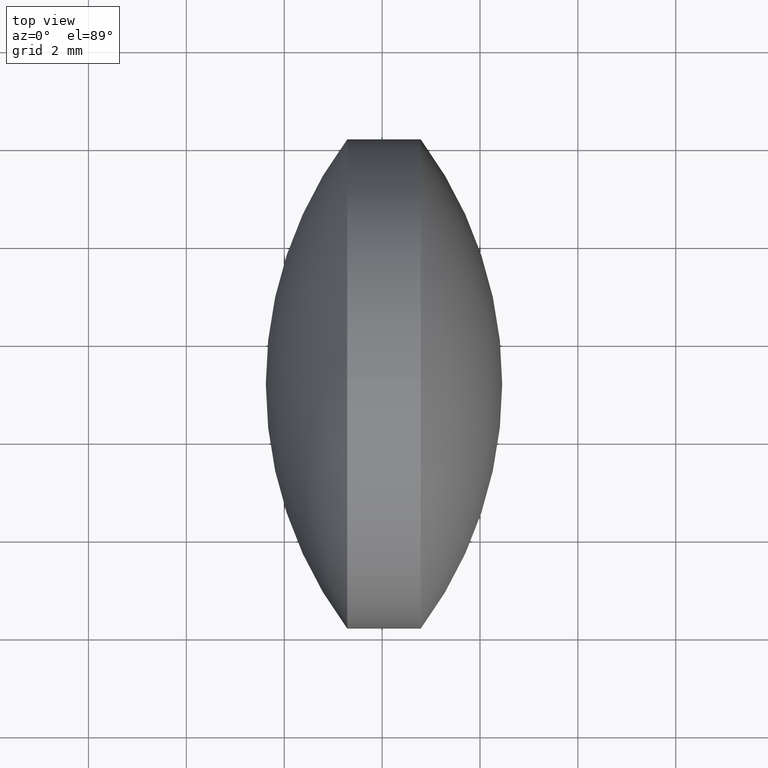
[diagram: clean part render]
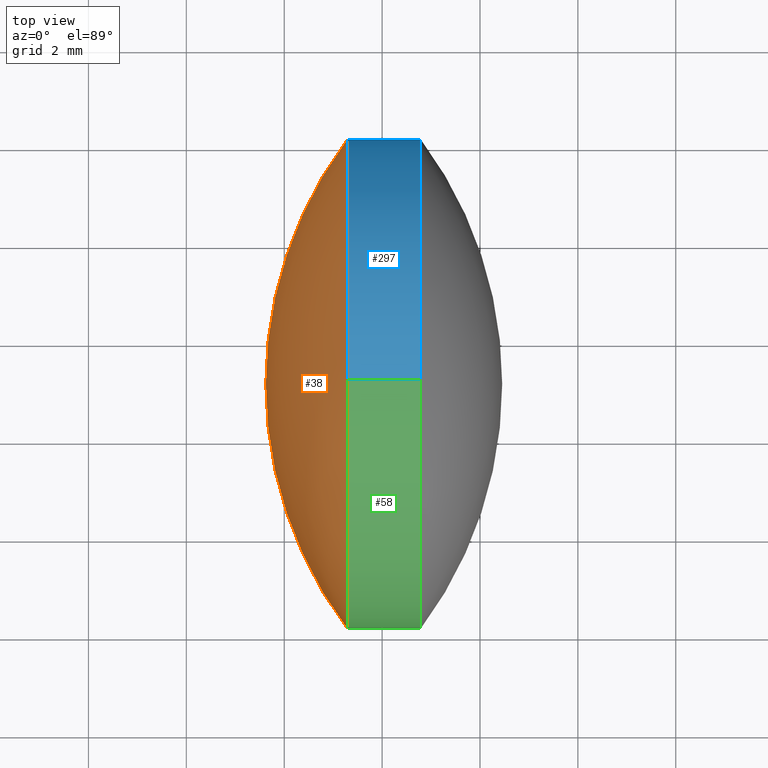
[diagram: same view with three faces highlighted in distinct colors, each labeled with its STEP entity id]
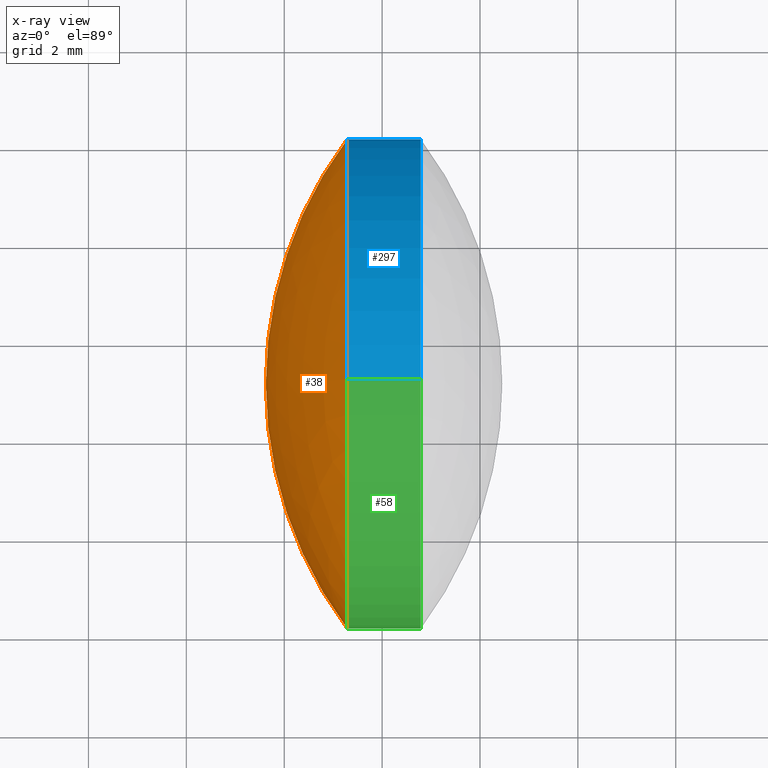
[diagram: x-ray of the same camera — body ghosted, the three highlighted faces saturated]
A machine part, top view with three faces highlighted in distinct colors.
The next image is the same camera in x-ray (body ghosted, the three faces saturated) — at least one of them is partly hidden behind the body in this view.
Their STEP definitions:

[orange] entity #38 — the highlighted spherical surface has radius 8.34 mm.
#8 = EDGE_LOOP ( 'NONE', ( #339, #135, #100, #218 ) ) ;
#15 = AXIS2_PLACEMENT_3D ( 'NONE', #260, #108, #161 ) ;
#30 = VERTEX_POINT ( 'NONE', #207 ) ;
#38 = ADVANCED_FACE ( 'NONE', ( #172 ), #222, .T. ) ;
#52 = EDGE_CURVE ( 'NONE', #313, #228, #273, .T. ) ;
#55 = CARTESIAN_POINT ( 'NONE',  ( 33.28865896640257200, 19.14020197763180800, 0.0000000000000000000 ) ) ;
#72 = VERTEX_POINT ( 'NONE', #344 ) ;
#75 = DIRECTION ( 'NONE',  ( -0.0000000000000000000, 0.0000000000000000000, 1.000000000000000000 ) ) ;
#93 = AXIS2_PLACEMENT_3D ( 'NONE', #242, #75, #262 ) ;
#100 = ORIENTED_EDGE ( 'NONE', *, *, #325, .T. ) ;
#108 = DIRECTION ( 'NONE',  ( -0.0000000000000000000, 0.0000000000000000000, -1.000000000000000000 ) ) ;
#115 = AXIS2_PLACEMENT_3D ( 'NONE', #151, #326, #235 ) ;
#116 = DIRECTION ( 'NONE',  ( 0.0000000000000000000, 0.0000000000000000000, 1.000000000000000000 ) ) ;
#135 = ORIENTED_EDGE ( 'NONE', *, *, #322, .T. ) ;
#139 = DIRECTION ( 'NONE',  ( -1.000000000000000000, -0.0000000000000000000, -0.0000000000000000000 ) ) ;
#151 = CARTESIAN_POINT ( 'NONE',  ( 39.96366647391008800, 19.14020197763180400, 0.0000000000000000000 ) ) ;
#153 = CARTESIAN_POINT ( 'NONE',  ( 31.62365896640257600, 19.14020197763180400, 0.0000000000000000000 ) ) ;
#159 = CIRCLE ( 'NONE', #279, 4.999999999999997300 ) ;
#161 = DIRECTION ( 'NONE',  ( 0.0000000000000000000, 1.000000000000000000, 0.0000000000000000000 ) ) ;
#164 = CIRCLE ( 'NONE', #115, 8.340007507507511500 ) ;
#172 = FACE_OUTER_BOUND ( 'NONE', #8, .T. ) ;
#192 = CARTESIAN_POINT ( 'NONE',  ( 33.28865896640257200, 19.14020197763180800, 0.0000000000000000000 ) ) ;
#207 = CARTESIAN_POINT ( 'NONE',  ( 33.28865896640257200, 19.14020197763180800, 4.999999999999997300 ) ) ;
#218 = ORIENTED_EDGE ( 'NONE', *, *, #52, .T. ) ;
#222 = SPHERICAL_SURFACE ( 'NONE', #15, 8.340007507507511500 ) ;
#223 = CARTESIAN_POINT ( 'NONE',  ( 33.28865896640257200, 24.14020197763180400, 0.0000000000000000000 ) ) ;
#228 = VERTEX_POINT ( 'NONE', #153 ) ;
#229 = CIRCLE ( 'NONE', #335, 4.999999999999997300 ) ;
#235 = DIRECTION ( 'NONE',  ( 0.0000000000000000000, 1.000000000000000000, 1.224646799147353200E-016 ) ) ;
#242 = CARTESIAN_POINT ( 'NONE',  ( 39.96366647391008800, 19.14020197763180400, 0.0000000000000000000 ) ) ;
#249 = DIRECTION ( 'NONE',  ( -1.000000000000000000, -0.0000000000000000000, -0.0000000000000000000 ) ) ;
#260 = CARTESIAN_POINT ( 'NONE',  ( 39.96366647391008800, 19.14020197763180400, 0.0000000000000000000 ) ) ;
#262 = DIRECTION ( 'NONE',  ( 1.000000000000000000, 0.0000000000000000000, 0.0000000000000000000 ) ) ;
#273 = CIRCLE ( 'NONE', #93, 8.340007507507511500 ) ;
#279 = AXIS2_PLACEMENT_3D ( 'NONE', #55, #249, #116 ) ;
#286 = EDGE_CURVE ( 'NONE', #72, #228, #164, .T. ) ;
#313 = VERTEX_POINT ( 'NONE', #223 ) ;
#317 = DIRECTION ( 'NONE',  ( 0.0000000000000000000, 0.0000000000000000000, 1.000000000000000000 ) ) ;
#322 = EDGE_CURVE ( 'NONE', #72, #30, #159, .T. ) ;
#325 = EDGE_CURVE ( 'NONE', #30, #313, #229, .T. ) ;
#326 = DIRECTION ( 'NONE',  ( 0.0000000000000000000, 1.224646799147353200E-016, -1.000000000000000000 ) ) ;
#335 = AXIS2_PLACEMENT_3D ( 'NONE', #192, #139, #317 ) ;
#339 = ORIENTED_EDGE ( 'NONE', *, *, #286, .F. ) ;
#344 = CARTESIAN_POINT ( 'NONE',  ( 33.28865896640257200, 14.14020197763180800, -6.123233995736764300E-016 ) ) ;

[blue] entity #297 — the highlighted cylindrical surface (partial cylindrical patch) has radius 5 mm, axis along (-1, -0, -0).
#1 = CIRCLE ( 'NONE', #127, 4.999999999999997300 ) ;
#2 = CARTESIAN_POINT ( 'NONE',  ( 34.78865896640257900, 24.14020197763180800, 0.0000000000000000000 ) ) ;
#5 = ORIENTED_EDGE ( 'NONE', *, *, #59, .T. ) ;
#9 = LINE ( 'NONE', #320, #96 ) ;
#20 = CIRCLE ( 'NONE', #138, 4.999999999999997300 ) ;
#24 = DIRECTION ( 'NONE',  ( 0.0000000000000000000, 0.0000000000000000000, 1.000000000000000000 ) ) ;
#30 = VERTEX_POINT ( 'NONE', #207 ) ;
#32 = ORIENTED_EDGE ( 'NONE', *, *, #325, .F. ) ;
#36 = CARTESIAN_POINT ( 'NONE',  ( 34.78865896640257900, 19.14020197763180800, -4.999999999999997300 ) ) ;
#39 = EDGE_CURVE ( 'NONE', #313, #106, #89, .T. ) ;
#51 = DIRECTION ( 'NONE',  ( -1.000000000000000000, -0.0000000000000000000, -0.0000000000000000000 ) ) ;
#57 = DIRECTION ( 'NONE',  ( -1.000000000000000000, -0.0000000000000000000, -0.0000000000000000000 ) ) ;
#59 = EDGE_CURVE ( 'NONE', #83, #85, #1, .T. ) ;
#60 = CARTESIAN_POINT ( 'NONE',  ( 34.78865896640257900, 19.14020197763180800, 0.0000000000000000000 ) ) ;
#68 = AXIS2_PLACEMENT_3D ( 'NONE', #314, #51, #24 ) ;
#83 = VERTEX_POINT ( 'NONE', #2 ) ;
#85 = VERTEX_POINT ( 'NONE', #36 ) ;
#89 = CIRCLE ( 'NONE', #68, 4.999999999999997300 ) ;
#92 = EDGE_LOOP ( 'NONE', ( #5, #103, #154, #32, #134, #148 ) ) ;
#96 = VECTOR ( 'NONE', #142, 1000.000000000000000 ) ;
#103 = ORIENTED_EDGE ( 'NONE', *, *, #311, .T. ) ;
#106 = VERTEX_POINT ( 'NONE', #224 ) ;
#118 = DIRECTION ( 'NONE',  ( 0.0000000000000000000, 0.0000000000000000000, 1.000000000000000000 ) ) ;
#119 = DIRECTION ( 'NONE',  ( -1.000000000000000000, -0.0000000000000000000, -0.0000000000000000000 ) ) ;
#127 = AXIS2_PLACEMENT_3D ( 'NONE', #213, #119, #296 ) ;
#134 = ORIENTED_EDGE ( 'NONE', *, *, #345, .F. ) ;
#138 = AXIS2_PLACEMENT_3D ( 'NONE', #60, #194, #176 ) ;
#139 = DIRECTION ( 'NONE',  ( -1.000000000000000000, -0.0000000000000000000, -0.0000000000000000000 ) ) ;
#141 = CARTESIAN_POINT ( 'NONE',  ( 31.22259895702250500, 19.14020197763180800, 4.999999999999997300 ) ) ;
#142 = DIRECTION ( 'NONE',  ( -1.000000000000000000, -0.0000000000000000000, -0.0000000000000000000 ) ) ;
#148 = ORIENTED_EDGE ( 'NONE', *, *, #306, .T. ) ;
#154 = ORIENTED_EDGE ( 'NONE', *, *, #39, .F. ) ;
#169 = AXIS2_PLACEMENT_3D ( 'NONE', #343, #220, #118 ) ;
#171 = VECTOR ( 'NONE', #57, 1000.000000000000000 ) ;
#176 = DIRECTION ( 'NONE',  ( 0.0000000000000000000, 0.0000000000000000000, 1.000000000000000000 ) ) ;
#192 = CARTESIAN_POINT ( 'NONE',  ( 33.28865896640257200, 19.14020197763180800, 0.0000000000000000000 ) ) ;
#193 = CARTESIAN_POINT ( 'NONE',  ( 34.78865896640257900, 19.14020197763180800, 4.999999999999997300 ) ) ;
#194 = DIRECTION ( 'NONE',  ( -1.000000000000000000, -0.0000000000000000000, -0.0000000000000000000 ) ) ;
#207 = CARTESIAN_POINT ( 'NONE',  ( 33.28865896640257200, 19.14020197763180800, 4.999999999999997300 ) ) ;
#213 = CARTESIAN_POINT ( 'NONE',  ( 34.78865896640257900, 19.14020197763180800, 0.0000000000000000000 ) ) ;
#220 = DIRECTION ( 'NONE',  ( -1.000000000000000000, -0.0000000000000000000, -0.0000000000000000000 ) ) ;
#223 = CARTESIAN_POINT ( 'NONE',  ( 33.28865896640257200, 24.14020197763180400, 0.0000000000000000000 ) ) ;
#224 = CARTESIAN_POINT ( 'NONE',  ( 33.28865896640257200, 19.14020197763180800, -4.999999999999997300 ) ) ;
#229 = CIRCLE ( 'NONE', #335, 4.999999999999997300 ) ;
#236 = FACE_OUTER_BOUND ( 'NONE', #92, .T. ) ;
#266 = VERTEX_POINT ( 'NONE', #193 ) ;
#280 = CYLINDRICAL_SURFACE ( 'NONE', #169, 4.999999999999997300 ) ;
#290 = LINE ( 'NONE', #141, #171 ) ;
#296 = DIRECTION ( 'NONE',  ( 0.0000000000000000000, 0.0000000000000000000, 1.000000000000000000 ) ) ;
#297 = ADVANCED_FACE ( 'NONE', ( #236 ), #280, .T. ) ;
#306 = EDGE_CURVE ( 'NONE', #266, #83, #20, .T. ) ;
#311 = EDGE_CURVE ( 'NONE', #85, #106, #9, .T. ) ;
#313 = VERTEX_POINT ( 'NONE', #223 ) ;
#314 = CARTESIAN_POINT ( 'NONE',  ( 33.28865896640257200, 19.14020197763180800, 0.0000000000000000000 ) ) ;
#317 = DIRECTION ( 'NONE',  ( 0.0000000000000000000, 0.0000000000000000000, 1.000000000000000000 ) ) ;
#320 = CARTESIAN_POINT ( 'NONE',  ( 31.22259895702250500, 19.14020197763180800, -4.999999999999997300 ) ) ;
#325 = EDGE_CURVE ( 'NONE', #30, #313, #229, .T. ) ;
#335 = AXIS2_PLACEMENT_3D ( 'NONE', #192, #139, #317 ) ;
#343 = CARTESIAN_POINT ( 'NONE',  ( 31.22259895702250500, 19.14020197763180800, 0.0000000000000000000 ) ) ;
#345 = EDGE_CURVE ( 'NONE', #266, #30, #290, .T. ) ;

[green] entity #58 — the highlighted cylindrical surface (partial cylindrical patch) has radius 5 mm, axis along (-1, -0, -0).
#9 = LINE ( 'NONE', #320, #96 ) ;
#12 = DIRECTION ( 'NONE',  ( 0.0000000000000000000, 0.0000000000000000000, 1.000000000000000000 ) ) ;
#17 = EDGE_LOOP ( 'NONE', ( #155, #301, #248, #227, #278, #338 ) ) ;
#18 = CARTESIAN_POINT ( 'NONE',  ( 33.28865896640257200, 19.14020197763180800, 0.0000000000000000000 ) ) ;
#23 = CIRCLE ( 'NONE', #46, 4.999999999999997300 ) ;
#30 = VERTEX_POINT ( 'NONE', #207 ) ;
#36 = CARTESIAN_POINT ( 'NONE',  ( 34.78865896640257900, 19.14020197763180800, -4.999999999999997300 ) ) ;
#46 = AXIS2_PLACEMENT_3D ( 'NONE', #208, #247, #293 ) ;
#49 = DIRECTION ( 'NONE',  ( -1.000000000000000000, -0.0000000000000000000, -0.0000000000000000000 ) ) ;
#55 = CARTESIAN_POINT ( 'NONE',  ( 33.28865896640257200, 19.14020197763180800, 0.0000000000000000000 ) ) ;
#57 = DIRECTION ( 'NONE',  ( -1.000000000000000000, -0.0000000000000000000, -0.0000000000000000000 ) ) ;
#58 = ADVANCED_FACE ( 'NONE', ( #150 ), #99, .T. ) ;
#62 = VERTEX_POINT ( 'NONE', #90 ) ;
#72 = VERTEX_POINT ( 'NONE', #344 ) ;
#84 = AXIS2_PLACEMENT_3D ( 'NONE', #251, #49, #109 ) ;
#85 = VERTEX_POINT ( 'NONE', #36 ) ;
#90 = CARTESIAN_POINT ( 'NONE',  ( 34.78865896640257900, 14.14020197763181000, -6.123233995736766300E-016 ) ) ;
#96 = VECTOR ( 'NONE', #142, 1000.000000000000000 ) ;
#99 = CYLINDRICAL_SURFACE ( 'NONE', #105, 4.999999999999997300 ) ;
#105 = AXIS2_PLACEMENT_3D ( 'NONE', #187, #111, #332 ) ;
#106 = VERTEX_POINT ( 'NONE', #224 ) ;
#109 = DIRECTION ( 'NONE',  ( 0.0000000000000000000, 0.0000000000000000000, 1.000000000000000000 ) ) ;
#111 = DIRECTION ( 'NONE',  ( -1.000000000000000000, -0.0000000000000000000, -0.0000000000000000000 ) ) ;
#116 = DIRECTION ( 'NONE',  ( 0.0000000000000000000, 0.0000000000000000000, 1.000000000000000000 ) ) ;
#141 = CARTESIAN_POINT ( 'NONE',  ( 31.22259895702250500, 19.14020197763180800, 4.999999999999997300 ) ) ;
#142 = DIRECTION ( 'NONE',  ( -1.000000000000000000, -0.0000000000000000000, -0.0000000000000000000 ) ) ;
#143 = CIRCLE ( 'NONE', #265, 4.999999999999997300 ) ;
#150 = FACE_OUTER_BOUND ( 'NONE', #17, .T. ) ;
#155 = ORIENTED_EDGE ( 'NONE', *, *, #311, .F. ) ;
#159 = CIRCLE ( 'NONE', #279, 4.999999999999997300 ) ;
#171 = VECTOR ( 'NONE', #57, 1000.000000000000000 ) ;
#179 = EDGE_CURVE ( 'NONE', #85, #62, #284, .T. ) ;
#183 = DIRECTION ( 'NONE',  ( -1.000000000000000000, -0.0000000000000000000, -0.0000000000000000000 ) ) ;
#187 = CARTESIAN_POINT ( 'NONE',  ( 31.22259895702250500, 19.14020197763180800, 0.0000000000000000000 ) ) ;
#193 = CARTESIAN_POINT ( 'NONE',  ( 34.78865896640257900, 19.14020197763180800, 4.999999999999997300 ) ) ;
#207 = CARTESIAN_POINT ( 'NONE',  ( 33.28865896640257200, 19.14020197763180800, 4.999999999999997300 ) ) ;
#208 = CARTESIAN_POINT ( 'NONE',  ( 34.78865896640257900, 19.14020197763180800, 0.0000000000000000000 ) ) ;
#224 = CARTESIAN_POINT ( 'NONE',  ( 33.28865896640257200, 19.14020197763180800, -4.999999999999997300 ) ) ;
#227 = ORIENTED_EDGE ( 'NONE', *, *, #345, .T. ) ;
#246 = EDGE_CURVE ( 'NONE', #106, #72, #143, .T. ) ;
#247 = DIRECTION ( 'NONE',  ( -1.000000000000000000, -0.0000000000000000000, -0.0000000000000000000 ) ) ;
#248 = ORIENTED_EDGE ( 'NONE', *, *, #256, .T. ) ;
#249 = DIRECTION ( 'NONE',  ( -1.000000000000000000, -0.0000000000000000000, -0.0000000000000000000 ) ) ;
#251 = CARTESIAN_POINT ( 'NONE',  ( 34.78865896640257900, 19.14020197763180800, 0.0000000000000000000 ) ) ;
#256 = EDGE_CURVE ( 'NONE', #62, #266, #23, .T. ) ;
#265 = AXIS2_PLACEMENT_3D ( 'NONE', #18, #183, #12 ) ;
#266 = VERTEX_POINT ( 'NONE', #193 ) ;
#278 = ORIENTED_EDGE ( 'NONE', *, *, #322, .F. ) ;
#279 = AXIS2_PLACEMENT_3D ( 'NONE', #55, #249, #116 ) ;
#284 = CIRCLE ( 'NONE', #84, 4.999999999999997300 ) ;
#290 = LINE ( 'NONE', #141, #171 ) ;
#293 = DIRECTION ( 'NONE',  ( 0.0000000000000000000, 0.0000000000000000000, 1.000000000000000000 ) ) ;
#301 = ORIENTED_EDGE ( 'NONE', *, *, #179, .T. ) ;
#311 = EDGE_CURVE ( 'NONE', #85, #106, #9, .T. ) ;
#320 = CARTESIAN_POINT ( 'NONE',  ( 31.22259895702250500, 19.14020197763180800, -4.999999999999997300 ) ) ;
#322 = EDGE_CURVE ( 'NONE', #72, #30, #159, .T. ) ;
#332 = DIRECTION ( 'NONE',  ( 0.0000000000000000000, 0.0000000000000000000, 1.000000000000000000 ) ) ;
#338 = ORIENTED_EDGE ( 'NONE', *, *, #246, .F. ) ;
#344 = CARTESIAN_POINT ( 'NONE',  ( 33.28865896640257200, 14.14020197763180800, -6.123233995736764300E-016 ) ) ;
#345 = EDGE_CURVE ( 'NONE', #266, #30, #290, .T. ) ;